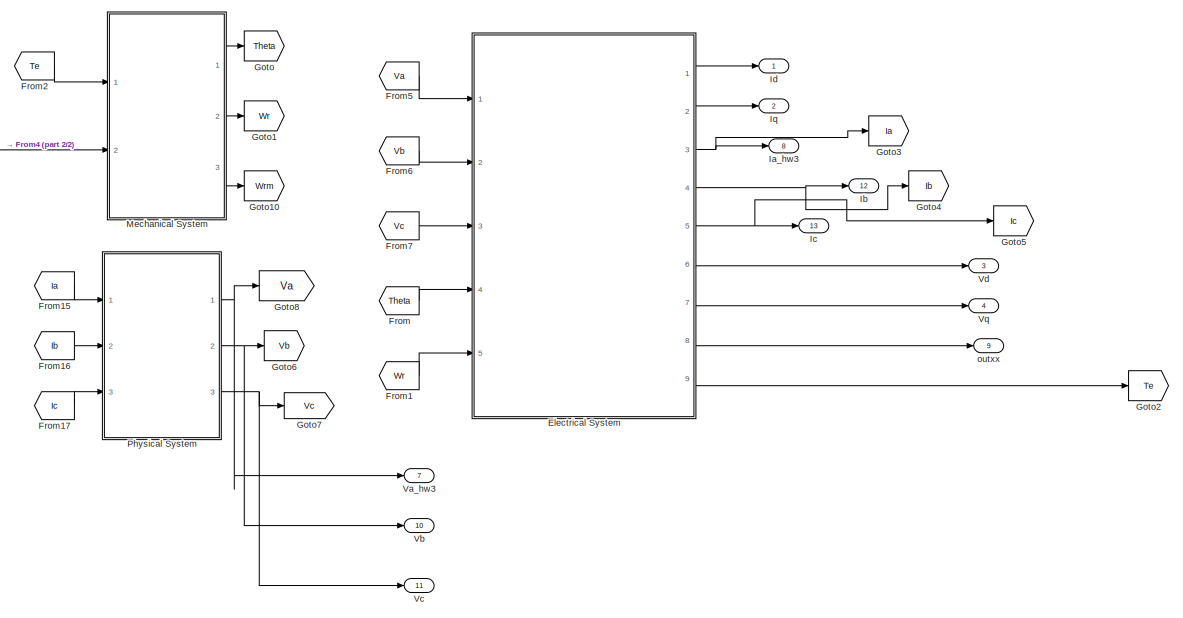
[diagram: root canvas - part 1/2, most of the canvas]
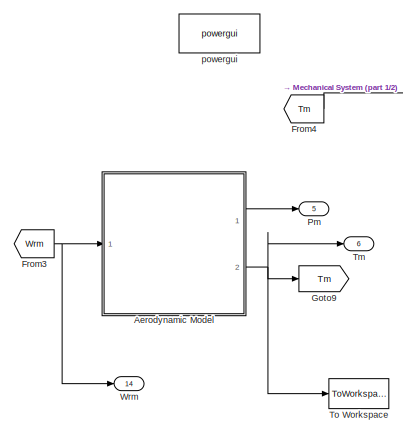
[diagram: root canvas - part 2/2, middle left region]
MODEL slx_8ada5b428c12
KIND model
CONFIG AbsTol = auto
CONFIG EnableMultiTasking = off
CONFIG FixedStep = auto
CONFIG MaxStep = auto
CONFIG MinStep = auto
CONFIG RelTol = 1e-3
CONFIG SampleTimeConstraint = Unconstrained
CONFIG Solver = ode45
CONFIG SolverName = ode45
CONFIG StartTime = 0.0
CONFIG StopTime = 4
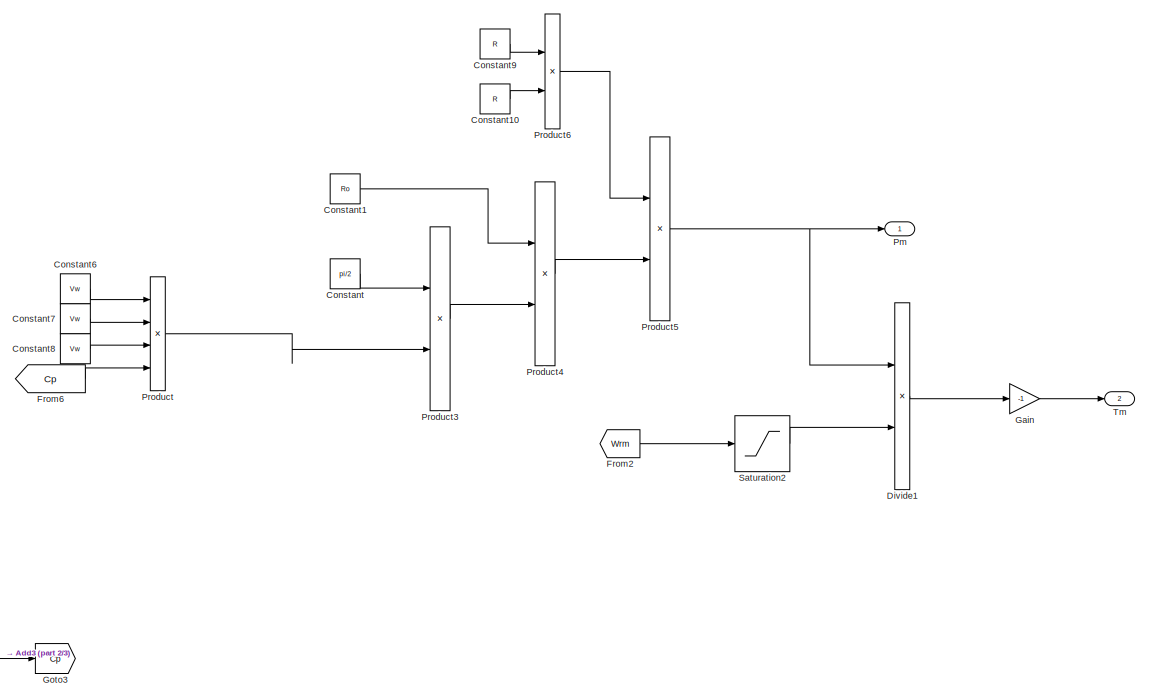
[diagram: Aerodynamic Model  - part 1/3, right side, full height]
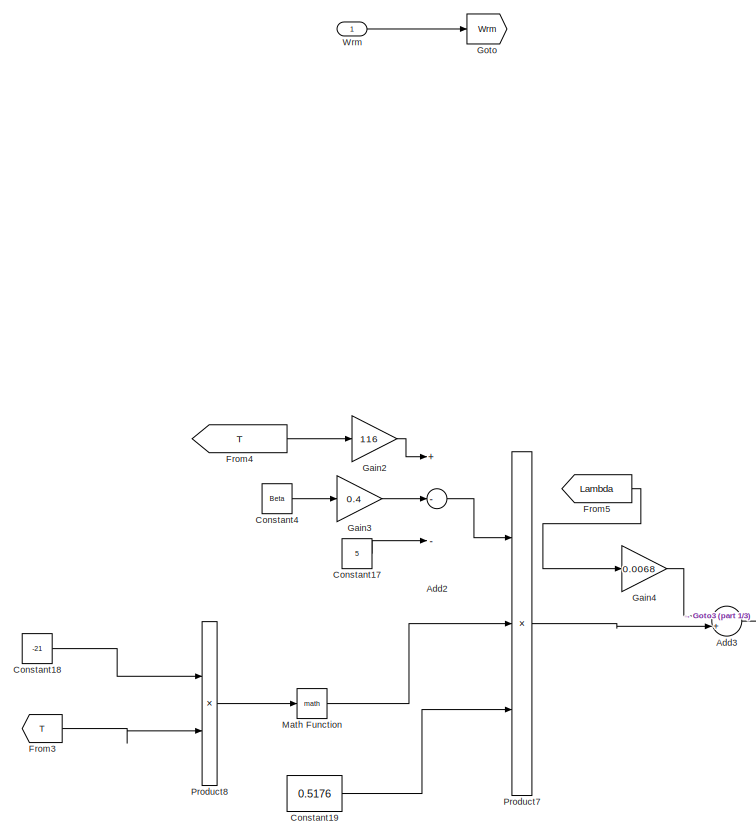
[diagram: Aerodynamic Model  - part 2/3, center side, full height]
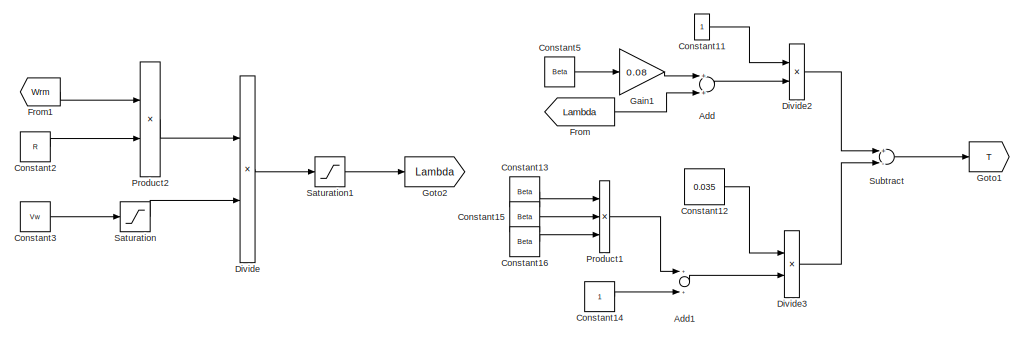
[diagram: Aerodynamic Model  - part 3/3, bottom left region]
BLOCK [SubSystem] Aerodynamic Model 
  Ports = [1, 2]
  RequestExecContextInheritance = off
BLOCK [Sum] Aerodynamic Model /Add
  InputSameDT = off
  OutDataTypeStr = Inherit: Inherit via internal rule
  Ports = [2, 1]
  SaturateOnIntegerOverflow = off
BLOCK [Sum] Aerodynamic Model /Add1
  InputSameDT = off
  OutDataTypeStr = Inherit: Inherit via internal rule
  Ports = [2, 1]
  SaturateOnIntegerOverflow = off
BLOCK [Sum] Aerodynamic Model /Add2
  InputSameDT = off
  Inputs = +--
  OutDataTypeStr = Inherit: Inherit via internal rule
  Ports = [3, 1]
  SaturateOnIntegerOverflow = off
BLOCK [Sum] Aerodynamic Model /Add3
  InputSameDT = off
  OutDataTypeStr = Inherit: Inherit via internal rule
  Ports = [2, 1]
  SaturateOnIntegerOverflow = off
BLOCK [Constant] Aerodynamic Model /Constant
  Value = pi/2
BLOCK [Constant] Aerodynamic Model /Constant1
  Value = Ro
BLOCK [Constant] Aerodynamic Model /Constant10
  Value = R
BLOCK [Constant] Aerodynamic Model /Constant11
BLOCK [Constant] Aerodynamic Model /Constant12
  Value = 0.035
BLOCK [Constant] Aerodynamic Model /Constant13
  Value = Beta
BLOCK [Constant] Aerodynamic Model /Constant14
BLOCK [Constant] Aerodynamic Model /Constant15
  Value = Beta
BLOCK [Constant] Aerodynamic Model /Constant16
  Value = Beta
BLOCK [Constant] Aerodynamic Model /Constant17
  Value = 5
BLOCK [Constant] Aerodynamic Model /Constant18
  Value = -21
BLOCK [Constant] Aerodynamic Model /Constant19
  Value = 0.5176
BLOCK [Constant] Aerodynamic Model /Constant2
  Value = R
BLOCK [Constant] Aerodynamic Model /Constant3
  Value = Vw
BLOCK [Constant] Aerodynamic Model /Constant4
  Value = Beta
BLOCK [Constant] Aerodynamic Model /Constant5
  Value = Beta
BLOCK [Constant] Aerodynamic Model /Constant6
  Value = Vw
BLOCK [Constant] Aerodynamic Model /Constant7
  Value = Vw
BLOCK [Constant] Aerodynamic Model /Constant8
  Value = Vw
BLOCK [Constant] Aerodynamic Model /Constant9
  Value = R
BLOCK [Product] Aerodynamic Model /Divide
  InputSameDT = off
  Inputs = */
  OutDataTypeStr = Inherit: Inherit via internal rule
  Ports = [2, 1]
  RndMeth = Floor
  SaturateOnIntegerOverflow = off
BLOCK [Product] Aerodynamic Model /Divide1
  InputSameDT = off
  Inputs = */
  OutDataTypeStr = Inherit: Inherit via internal rule
  Ports = [2, 1]
  RndMeth = Floor
  SaturateOnIntegerOverflow = off
BLOCK [Product] Aerodynamic Model /Divide2
  InputSameDT = off
  Inputs = */
  OutDataTypeStr = Inherit: Inherit via internal rule
  Ports = [2, 1]
  RndMeth = Floor
  SaturateOnIntegerOverflow = off
BLOCK [Product] Aerodynamic Model /Divide3
  InputSameDT = off
  Inputs = */
  OutDataTypeStr = Inherit: Inherit via internal rule
  Ports = [2, 1]
  RndMeth = Floor
  SaturateOnIntegerOverflow = off
BLOCK [From] Aerodynamic Model /From
  GotoTag = Lambda
BLOCK [From] Aerodynamic Model /From1
  GotoTag = Wrm
BLOCK [From] Aerodynamic Model /From2
  GotoTag = Wrm
BLOCK [From] Aerodynamic Model /From3
  GotoTag = T
BLOCK [From] Aerodynamic Model /From4
  GotoTag = T
BLOCK [From] Aerodynamic Model /From5
  GotoTag = Lambda
BLOCK [From] Aerodynamic Model /From6
  GotoTag = Cp
BLOCK [Gain] Aerodynamic Model /Gain
  Gain = -1
  OutDataTypeStr = Inherit: Inherit via internal rule
  ParamDataTypeStr = Inherit: Inherit via internal rule
  SaturateOnIntegerOverflow = off
BLOCK [Gain] Aerodynamic Model /Gain1
  Gain = 0.08
  OutDataTypeStr = Inherit: Inherit via internal rule
  ParamDataTypeStr = Inherit: Inherit via internal rule
  SaturateOnIntegerOverflow = off
BLOCK [Gain] Aerodynamic Model /Gain2
  Gain = 116
  OutDataTypeStr = Inherit: Inherit via internal rule
  ParamDataTypeStr = Inherit: Inherit via internal rule
  SaturateOnIntegerOverflow = off
BLOCK [Gain] Aerodynamic Model /Gain3
  Gain = 0.4
  OutDataTypeStr = Inherit: Inherit via internal rule
  ParamDataTypeStr = Inherit: Inherit via internal rule
  SaturateOnIntegerOverflow = off
BLOCK [Gain] Aerodynamic Model /Gain4
  Gain = 0.0068
  OutDataTypeStr = Inherit: Inherit via internal rule
  ParamDataTypeStr = Inherit: Inherit via internal rule
  SaturateOnIntegerOverflow = off
BLOCK [Goto] Aerodynamic Model /Goto
  GotoTag = Wrm
BLOCK [Goto] Aerodynamic Model /Goto1
  GotoTag = T
BLOCK [Goto] Aerodynamic Model /Goto2
  GotoTag = Lambda
BLOCK [Goto] Aerodynamic Model /Goto3
  GotoTag = Cp
BLOCK [Math] Aerodynamic Model /Math Function
  Ports = [1, 1]
BLOCK [Outport] Aerodynamic Model /Pm
  IconDisplay = Port number
BLOCK [Product] Aerodynamic Model /Product
  InputSameDT = off
  Inputs = 4
  OutDataTypeStr = Inherit: Inherit via internal rule
  Ports = [4, 1]
  RndMeth = Floor
  SaturateOnIntegerOverflow = off
BLOCK [Product] Aerodynamic Model /Product1
  InputSameDT = off
  Inputs = 3
  OutDataTypeStr = Inherit: Inherit via internal rule
  Ports = [3, 1]
  RndMeth = Floor
  SaturateOnIntegerOverflow = off
BLOCK [Product] Aerodynamic Model /Product2
  InputSameDT = off
  OutDataTypeStr = Inherit: Inherit via internal rule
  Ports = [2, 1]
  RndMeth = Floor
  SaturateOnIntegerOverflow = off
BLOCK [Product] Aerodynamic Model /Product3
  InputSameDT = off
  OutDataTypeStr = Inherit: Inherit via internal rule
  Ports = [2, 1]
  RndMeth = Floor
  SaturateOnIntegerOverflow = off
BLOCK [Product] Aerodynamic Model /Product4
  InputSameDT = off
  OutDataTypeStr = Inherit: Inherit via internal rule
  Ports = [2, 1]
  RndMeth = Floor
  SaturateOnIntegerOverflow = off
BLOCK [Product] Aerodynamic Model /Product5
  InputSameDT = off
  OutDataTypeStr = Inherit: Inherit via internal rule
  Ports = [2, 1]
  RndMeth = Floor
  SaturateOnIntegerOverflow = off
BLOCK [Product] Aerodynamic Model /Product6
  InputSameDT = off
  OutDataTypeStr = Inherit: Inherit via internal rule
  Ports = [2, 1]
  RndMeth = Floor
  SaturateOnIntegerOverflow = off
BLOCK [Product] Aerodynamic Model /Product7
  InputSameDT = off
  Inputs = 3
  OutDataTypeStr = Inherit: Inherit via internal rule
  Ports = [3, 1]
  RndMeth = Floor
  SaturateOnIntegerOverflow = off
BLOCK [Product] Aerodynamic Model /Product8
  InputSameDT = off
  OutDataTypeStr = Inherit: Inherit via internal rule
  Ports = [2, 1]
  RndMeth = Floor
  SaturateOnIntegerOverflow = off
BLOCK [Saturate] Aerodynamic Model /Saturation
  InputPortMap = u0
  LowerLimit = 1e-6
  Ports = [1, 1]
  UpperLimit = 1e6
BLOCK [Saturate] Aerodynamic Model /Saturation1
  InputPortMap = u0
  LowerLimit = 1e-6
  Ports = [1, 1]
  UpperLimit = 1e6
BLOCK [Saturate] Aerodynamic Model /Saturation2
  InputPortMap = u0
  LowerLimit = 1e-6
  Ports = [1, 1]
  UpperLimit = 1e6
BLOCK [Sum] Aerodynamic Model /Subtract
  InputSameDT = off
  Inputs = +-
  OutDataTypeStr = Inherit: Inherit via internal rule
  Ports = [2, 1]
  SaturateOnIntegerOverflow = off
BLOCK [Outport] Aerodynamic Model /Tm
  IconDisplay = Port number
  Port = 2
BLOCK [Inport] Aerodynamic Model /Wrm 
  IconDisplay = Port number
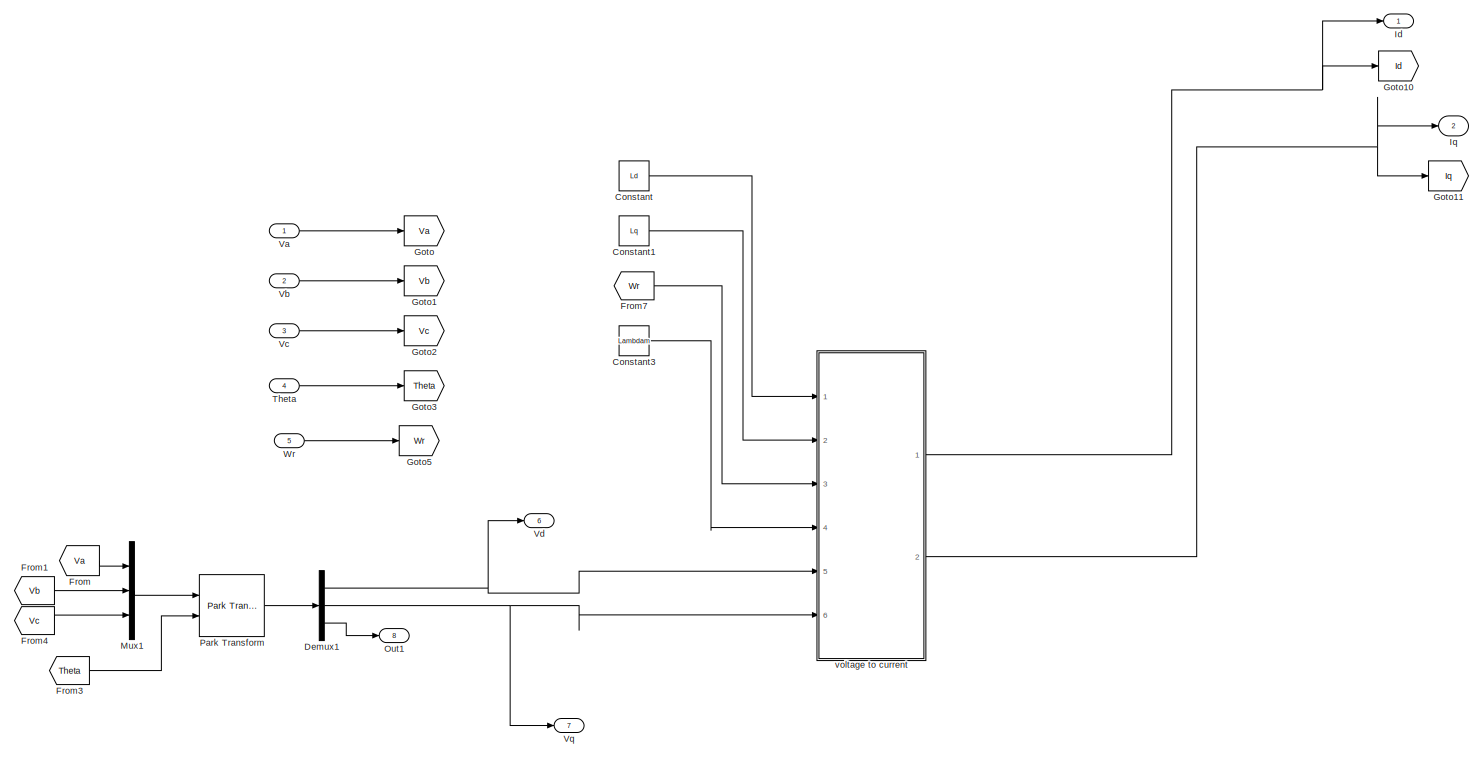
[diagram: Electrical System  - part 1/3, middle left region]
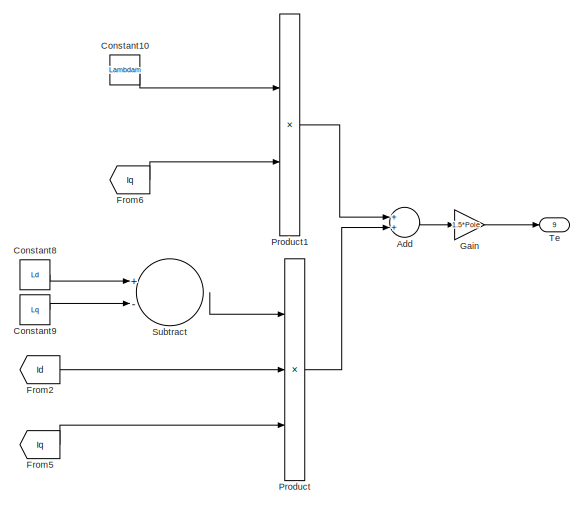
[diagram: Electrical System  - part 2/3, middle right region]
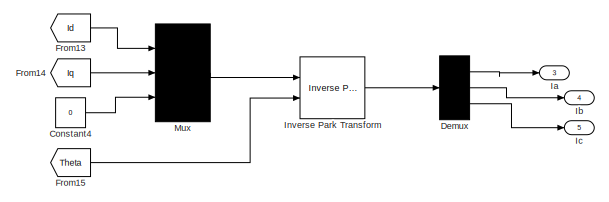
[diagram: Electrical System  - part 3/3, bottom center region]
BLOCK [SubSystem] Electrical System 
  Ports = [5, 9]
  RequestExecContextInheritance = off
  ShowPortLabels = SignalName
BLOCK [Sum] Electrical System /Add
  InputSameDT = off
  OutDataTypeStr = Inherit: Inherit via internal rule
  Ports = [2, 1]
  SaturateOnIntegerOverflow = off
BLOCK [Constant] Electrical System /Constant
  Value = Ld
BLOCK [Constant] Electrical System /Constant1
  Value = Lq
BLOCK [Constant] Electrical System /Constant10
  Value = Lambdam
BLOCK [Constant] Electrical System /Constant3
  Value = Lambdam
BLOCK [Constant] Electrical System /Constant4
  Value = 0
BLOCK [Constant] Electrical System /Constant8
  Value = Ld
BLOCK [Constant] Electrical System /Constant9
  Value = Lq
BLOCK [Demux] Electrical System /Demux
  DisplayOption = bar
  Outputs = 3
  Ports = [1, 3]
BLOCK [Demux] Electrical System /Demux1
  DisplayOption = bar
  Outputs = 3
  Ports = [1, 3]
BLOCK [From] Electrical System /From
  GotoTag = Va
BLOCK [From] Electrical System /From1
  GotoTag = Vb
BLOCK [From] Electrical System /From13
  GotoTag = Id
BLOCK [From] Electrical System /From14
  GotoTag = Iq
BLOCK [From] Electrical System /From15
  GotoTag = Theta
BLOCK [From] Electrical System /From2
  GotoTag = Id
BLOCK [From] Electrical System /From3
  GotoTag = Theta
BLOCK [From] Electrical System /From4
  GotoTag = Vc
BLOCK [From] Electrical System /From5
  GotoTag = Iq
BLOCK [From] Electrical System /From6
  GotoTag = Iq
BLOCK [From] Electrical System /From7
  GotoTag = Wr
BLOCK [Gain] Electrical System /Gain
  Gain = 1.5*Pole
  OutDataTypeStr = Inherit: Inherit via internal rule
  ParamDataTypeStr = Inherit: Inherit via internal rule
  SaturateOnIntegerOverflow = off
BLOCK [Goto] Electrical System /Goto
  GotoTag = Va
BLOCK [Goto] Electrical System /Goto1
  GotoTag = Vb
BLOCK [Goto] Electrical System /Goto10
  GotoTag = Id
BLOCK [Goto] Electrical System /Goto11
  GotoTag = Iq
BLOCK [Goto] Electrical System /Goto2
  GotoTag = Vc
BLOCK [Goto] Electrical System /Goto3
  GotoTag = Theta
BLOCK [Goto] Electrical System /Goto5
  GotoTag = Wr
BLOCK [Outport] Electrical System /Ia
  IconDisplay = Port number
  Port = 3
BLOCK [Outport] Electrical System /Ib
  IconDisplay = Port number
  Port = 4
BLOCK [Outport] Electrical System /Ic
  IconDisplay = Port number
  Port = 5
BLOCK [Outport] Electrical System /Id
  IconDisplay = Port number
BLOCK [Reference] Electrical System /Inverse Park Transform  REF=peTransforms/Inverse
Park Transform
  Ports = [2, 1]
  SourceBlock = peTransforms/Inverse\nPark Transform
  SourceType = Inverse Park Transform
BLOCK [Outport] Electrical System /Iq
  IconDisplay = Port number
  Port = 2
BLOCK [Mux] Electrical System /Mux
  DisplayOption = bar
  Inputs = 3
  Ports = [3, 1]
BLOCK [Mux] Electrical System /Mux1
  DisplayOption = bar
  Inputs = 3
  Ports = [3, 1]
BLOCK [Outport] Electrical System /Out1
  IconDisplay = Port number
  Port = 8
BLOCK [Reference] Electrical System /Park Transform  REF=peTransforms/Park Transform
  Ports = [2, 1]
  SourceBlock = peTransforms/Park Transform
  SourceType = Park Transform
BLOCK [Product] Electrical System /Product
  InputSameDT = off
  Inputs = 3
  OutDataTypeStr = Inherit: Inherit via internal rule
  Ports = [3, 1]
  RndMeth = Floor
  SaturateOnIntegerOverflow = off
BLOCK [Product] Electrical System /Product1
  InputSameDT = off
  OutDataTypeStr = Inherit: Inherit via internal rule
  Ports = [2, 1]
  RndMeth = Floor
  SaturateOnIntegerOverflow = off
BLOCK [Sum] Electrical System /Subtract
  InputSameDT = off
  Inputs = +-
  OutDataTypeStr = Inherit: Inherit via internal rule
  Ports = [2, 1]
  SaturateOnIntegerOverflow = off
BLOCK [Outport] Electrical System /Te 
  IconDisplay = Port number
  Port = 9
BLOCK [Inport] Electrical System /Theta
  IconDisplay = Port number
  Port = 4
BLOCK [Inport] Electrical System /Va
  IconDisplay = Port number
BLOCK [Inport] Electrical System /Vb
  IconDisplay = Port number
  Port = 2
BLOCK [Inport] Electrical System /Vc
  IconDisplay = Port number
  Port = 3
BLOCK [Outport] Electrical System /Vd 
  IconDisplay = Port number
  Port = 6
BLOCK [Outport] Electrical System /Vq 
  IconDisplay = Port number
  Port = 7
BLOCK [Inport] Electrical System /Wr
  IconDisplay = Port number
  Port = 5
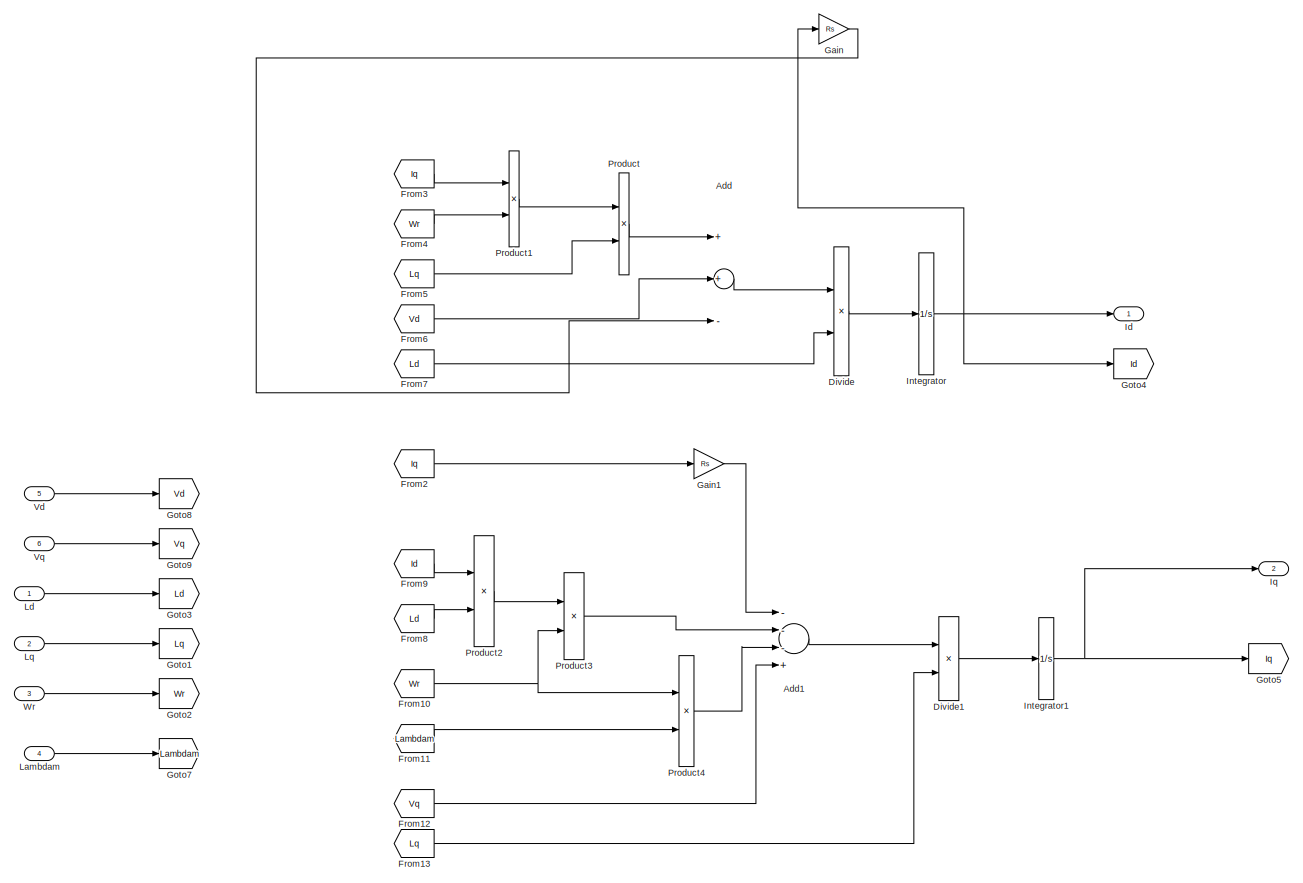
[diagram: Electrical System /voltage to current - part 1/1, most of the canvas]
BLOCK [SubSystem] Electrical System /voltage to current
  Ports = [6, 2]
  RequestExecContextInheritance = off
  ShowPortLabels = SignalName
BLOCK [Sum] Electrical System /voltage to current/Add
  InputSameDT = off
  Inputs = ++-
  OutDataTypeStr = Inherit: Inherit via internal rule
  Ports = [3, 1]
  SaturateOnIntegerOverflow = off
BLOCK [Sum] Electrical System /voltage to current/Add1
  InputSameDT = off
  Inputs = ---+
  OutDataTypeStr = Inherit: Inherit via internal rule
  Ports = [4, 1]
  SaturateOnIntegerOverflow = off
BLOCK [Product] Electrical System /voltage to current/Divide
  InputSameDT = off
  Inputs = */
  OutDataTypeStr = Inherit: Inherit via internal rule
  Ports = [2, 1]
  RndMeth = Floor
  SaturateOnIntegerOverflow = off
BLOCK [Product] Electrical System /voltage to current/Divide1
  InputSameDT = off
  Inputs = */
  OutDataTypeStr = Inherit: Inherit via internal rule
  Ports = [2, 1]
  RndMeth = Floor
  SaturateOnIntegerOverflow = off
BLOCK [From] Electrical System /voltage to current/From10
  GotoTag = Wr
BLOCK [From] Electrical System /voltage to current/From11
  GotoTag = Lambdam
BLOCK [From] Electrical System /voltage to current/From12
  GotoTag = Vq
BLOCK [From] Electrical System /voltage to current/From13
  GotoTag = Lq
BLOCK [From] Electrical System /voltage to current/From2
  GotoTag = Iq
BLOCK [From] Electrical System /voltage to current/From3
  GotoTag = Iq
BLOCK [From] Electrical System /voltage to current/From4
  GotoTag = Wr
BLOCK [From] Electrical System /voltage to current/From5
  GotoTag = Lq
BLOCK [From] Electrical System /voltage to current/From6
  GotoTag = Vd
BLOCK [From] Electrical System /voltage to current/From7
  GotoTag = Ld
BLOCK [From] Electrical System /voltage to current/From8
  GotoTag = Ld
BLOCK [From] Electrical System /voltage to current/From9
  GotoTag = Id
BLOCK [Gain] Electrical System /voltage to current/Gain
  Gain = Rs
  OutDataTypeStr = Inherit: Inherit via internal rule
  ParamDataTypeStr = Inherit: Inherit via internal rule
  SaturateOnIntegerOverflow = off
BLOCK [Gain] Electrical System /voltage to current/Gain1
  Gain = Rs
  OutDataTypeStr = Inherit: Inherit via internal rule
  ParamDataTypeStr = Inherit: Inherit via internal rule
  SaturateOnIntegerOverflow = off
BLOCK [Goto] Electrical System /voltage to current/Goto1
  GotoTag = Lq
BLOCK [Goto] Electrical System /voltage to current/Goto2
  GotoTag = Wr
BLOCK [Goto] Electrical System /voltage to current/Goto3
  GotoTag = Ld
BLOCK [Goto] Electrical System /voltage to current/Goto4
  GotoTag = Id
BLOCK [Goto] Electrical System /voltage to current/Goto5
  GotoTag = Iq
BLOCK [Goto] Electrical System /voltage to current/Goto7
  GotoTag = Lambdam
BLOCK [Goto] Electrical System /voltage to current/Goto8
  GotoTag = Vd
BLOCK [Goto] Electrical System /voltage to current/Goto9
  GotoTag = Vq
  IconDisplay = Tag and signal name
BLOCK [Outport] Electrical System /voltage to current/Id
  IconDisplay = Port number
BLOCK [Integrator] Electrical System /voltage to current/Integrator
  Ports = [1, 1]
BLOCK [Integrator] Electrical System /voltage to current/Integrator1
  Ports = [1, 1]
BLOCK [Outport] Electrical System /voltage to current/Iq
  IconDisplay = Port number
  Port = 2
BLOCK [Inport] Electrical System /voltage to current/Lambdam
  IconDisplay = Port number
  Port = 4
BLOCK [Inport] Electrical System /voltage to current/Ld
  IconDisplay = Port number
BLOCK [Inport] Electrical System /voltage to current/Lq 
  IconDisplay = Port number
  Port = 2
BLOCK [Product] Electrical System /voltage to current/Product
  InputSameDT = off
  OutDataTypeStr = Inherit: Inherit via internal rule
  Ports = [2, 1]
  RndMeth = Floor
  SaturateOnIntegerOverflow = off
BLOCK [Product] Electrical System /voltage to current/Product1
  InputSameDT = off
  OutDataTypeStr = Inherit: Inherit via internal rule
  Ports = [2, 1]
  RndMeth = Floor
  SaturateOnIntegerOverflow = off
BLOCK [Product] Electrical System /voltage to current/Product2
  InputSameDT = off
  OutDataTypeStr = Inherit: Inherit via internal rule
  Ports = [2, 1]
  RndMeth = Floor
  SaturateOnIntegerOverflow = off
BLOCK [Product] Electrical System /voltage to current/Product3
  InputSameDT = off
  OutDataTypeStr = Inherit: Inherit via internal rule
  Ports = [2, 1]
  RndMeth = Floor
  SaturateOnIntegerOverflow = off
BLOCK [Product] Electrical System /voltage to current/Product4
  InputSameDT = off
  OutDataTypeStr = Inherit: Inherit via internal rule
  Ports = [2, 1]
  RndMeth = Floor
  SaturateOnIntegerOverflow = off
BLOCK [Inport] Electrical System /voltage to current/Vd 
  IconDisplay = Port number
  Port = 5
BLOCK [Inport] Electrical System /voltage to current/Vq
  IconDisplay = Port number
  Port = 6
BLOCK [Inport] Electrical System /voltage to current/Wr
  IconDisplay = Port number
  Port = 3
BLOCK [From] From
  GotoTag = Theta
BLOCK [From] From1
  GotoTag = Wr
BLOCK [From] From15
  GotoTag = Ia
BLOCK [From] From16
  GotoTag = Ib
BLOCK [From] From17
  GotoTag = Ic
BLOCK [From] From2
  GotoTag = Te
BLOCK [From] From3
  GotoTag = Wrm
BLOCK [From] From4
  GotoTag = Tm
BLOCK [From] From5
  GotoTag = Va
BLOCK [From] From6
  GotoTag = Vb
BLOCK [From] From7
  GotoTag = Vc
BLOCK [Goto] Goto
  GotoTag = Theta
BLOCK [Goto] Goto1
  GotoTag = Wr
BLOCK [Goto] Goto10
  GotoTag = Wrm
BLOCK [Goto] Goto2
  GotoTag = Te
BLOCK [Goto] Goto3
  GotoTag = Ia
BLOCK [Goto] Goto4
  GotoTag = Ib
BLOCK [Goto] Goto5
  GotoTag = Ic
BLOCK [Goto] Goto6
  GotoTag = Vb
BLOCK [Goto] Goto7
  GotoTag = Vc
BLOCK [Goto] Goto8
  GotoTag = Va
BLOCK [Goto] Goto9
  GotoTag = Tm
BLOCK [Outport] Ia_hw3 
  IconDisplay = Port number
  Port = 8
BLOCK [Outport] Ib
  IconDisplay = Port number
  Port = 12
BLOCK [Outport] Ic 
  IconDisplay = Port number
  Port = 13
BLOCK [Outport] Id
  IconDisplay = Port number
BLOCK [Outport] Iq
  IconDisplay = Port number
  Port = 2
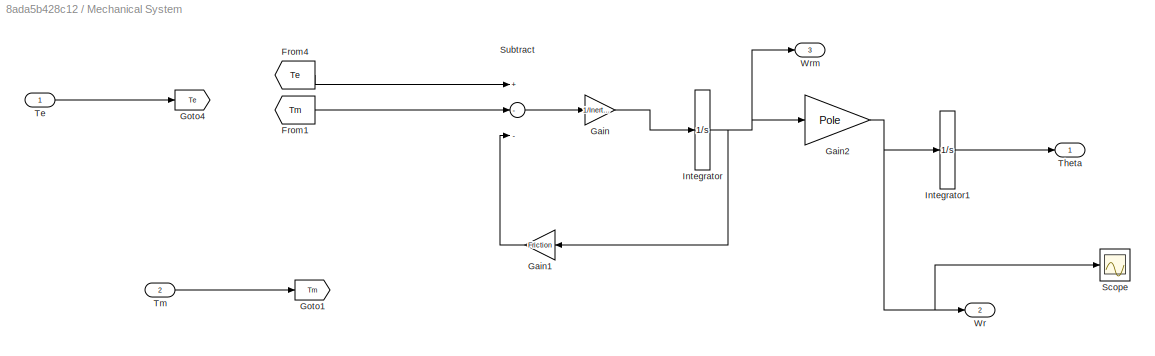
BLOCK [SubSystem] Mechanical System 
  Ports = [2, 3]
  RequestExecContextInheritance = off
BLOCK [From] Mechanical System /From1
  GotoTag = Tm
BLOCK [From] Mechanical System /From4
  GotoTag = Te
BLOCK [Gain] Mechanical System /Gain
  Gain = 1/Inertia
  OutDataTypeStr = Inherit: Inherit via internal rule
  ParamDataTypeStr = Inherit: Inherit via internal rule
  SaturateOnIntegerOverflow = off
BLOCK [Gain] Mechanical System /Gain1
  Gain = Friction
  OutDataTypeStr = Inherit: Inherit via internal rule
  ParamDataTypeStr = Inherit: Inherit via internal rule
  SaturateOnIntegerOverflow = off
BLOCK [Gain] Mechanical System /Gain2
  Gain = Pole
  OutDataTypeStr = Inherit: Inherit via internal rule
  ParamDataTypeStr = Inherit: Inherit via internal rule
  SaturateOnIntegerOverflow = off
BLOCK [Goto] Mechanical System /Goto1
  GotoTag = Tm
BLOCK [Goto] Mechanical System /Goto4
  GotoTag = Te
BLOCK [Integrator] Mechanical System /Integrator
  Ports = [1, 1]
BLOCK [Integrator] Mechanical System /Integrator1
  Ports = [1, 1]
BLOCK [Scope] Mechanical System /Scope
  Floating = off
  NumInputPorts = 1
  Ports = [1]
  ScopeSpecificationString = Simulink.scopes.TimeScopeBlockCfg('CurrentConfiguration', extmgr.ConfigurationSet(extmgr.Configuration('Core','General UI',true),extmgr.Configuration('Core','Source UI',true),extmgr.Configuration('Sources','WiredSimulink',true,'DataLoggingVariableName','ScopeData1'),extmgr.Configuration('Visuals','Time Domain',true,'SerializedDisplays',{struct('MinYLimReal','-46.12266','MaxYLimReal','415.10398','Y...<+1374ch>
BLOCK [Sum] Mechanical System /Subtract
  InputSameDT = off
  Inputs = +--
  OutDataTypeStr = Inherit: Inherit via internal rule
  Ports = [3, 1]
  SaturateOnIntegerOverflow = off
BLOCK [Inport] Mechanical System /Te
  IconDisplay = Port number
BLOCK [Outport] Mechanical System /Theta
  IconDisplay = Port number
BLOCK [Inport] Mechanical System /Tm 
  IconDisplay = Port number
  Port = 2
BLOCK [Outport] Mechanical System /Wr
  IconDisplay = Port number
  Port = 2
BLOCK [Outport] Mechanical System /Wrm 
  IconDisplay = Port number
  Port = 3
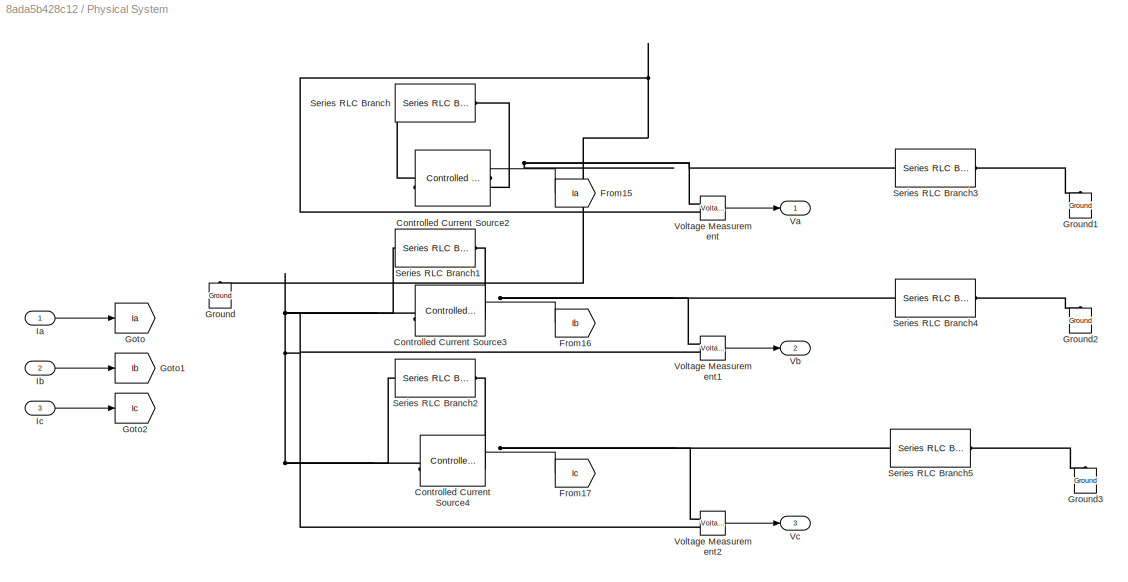
BLOCK [SubSystem] Physical System 
  Ports = [3, 3]
  RequestExecContextInheritance = off
BLOCK [Reference] Physical System /Controlled Current Source2  REF=powerlib/Electrical
Sources/Controlled Current Source
  Ports = [1, 0, 0, 0, 0, 1, 1]
  SourceBlock = powerlib/Electrical\nSources/Controlled Current Source
  SourceProductBaseCode = PS
  SourceProductName = Simscape Power Systems
  SourceType = Controlled Current Source
BLOCK [Reference] Physical System /Controlled Current Source3  REF=powerlib/Electrical
Sources/Controlled Current Source
  Ports = [1, 0, 0, 0, 0, 1, 1]
  SourceBlock = powerlib/Electrical\nSources/Controlled Current Source
  SourceProductBaseCode = PS
  SourceProductName = Simscape Power Systems
  SourceType = Controlled Current Source
BLOCK [Reference] Physical System /Controlled Current Source4  REF=powerlib/Electrical
Sources/Controlled Current Source
  Ports = [1, 0, 0, 0, 0, 1, 1]
  SourceBlock = powerlib/Electrical\nSources/Controlled Current Source
  SourceProductBaseCode = PS
  SourceProductName = Simscape Power Systems
  SourceType = Controlled Current Source
BLOCK [From] Physical System /From15
  GotoTag = Ia
BLOCK [From] Physical System /From16
  GotoTag = Ib
BLOCK [From] Physical System /From17
  GotoTag = Ic
BLOCK [Goto] Physical System /Goto
  GotoTag = Ia
BLOCK [Goto] Physical System /Goto1
  GotoTag = Ib
BLOCK [Goto] Physical System /Goto2
  GotoTag = Ic
BLOCK [Reference] Physical System /Ground  REF=powerlib/Elements/Ground
  Ports = [0, 0, 0, 0, 0, 1]
  SourceBlock = powerlib/Elements/Ground
  SourceProductBaseCode = PS
  SourceProductName = Simscape Power Systems
  SourceType = Ground
BLOCK [Reference] Physical System /Ground1  REF=powerlib/Elements/Ground
  Ports = [0, 0, 0, 0, 0, 1]
  SourceBlock = powerlib/Elements/Ground
  SourceProductBaseCode = PS
  SourceProductName = Simscape Power Systems
  SourceType = Ground
BLOCK [Reference] Physical System /Ground2  REF=powerlib/Elements/Ground
  Ports = [0, 0, 0, 0, 0, 1]
  SourceBlock = powerlib/Elements/Ground
  SourceProductBaseCode = PS
  SourceProductName = Simscape Power Systems
  SourceType = Ground
BLOCK [Reference] Physical System /Ground3  REF=powerlib/Elements/Ground
  Ports = [0, 0, 0, 0, 0, 1]
  SourceBlock = powerlib/Elements/Ground
  SourceProductBaseCode = PS
  SourceProductName = Simscape Power Systems
  SourceType = Ground
BLOCK [Inport] Physical System /Ia 
  IconDisplay = Port number
BLOCK [Inport] Physical System /Ib 
  IconDisplay = Port number
  Port = 2
BLOCK [Inport] Physical System /Ic 
  IconDisplay = Port number
  Port = 3
BLOCK [Reference] Physical System /Series RLC Branch  REF=powerlib/Elements/Series RLC Branch
  Ports = [0, 0, 0, 0, 0, 1, 1]
  SourceBlock = powerlib/Elements/Series RLC Branch
  SourceProductBaseCode = PS
  SourceProductName = Simscape Power Systems
  SourceType = Series RLC Branch
BLOCK [Reference] Physical System /Series RLC Branch1  REF=powerlib/Elements/Series RLC Branch
  Ports = [0, 0, 0, 0, 0, 1, 1]
  SourceBlock = powerlib/Elements/Series RLC Branch
  SourceProductBaseCode = PS
  SourceProductName = Simscape Power Systems
  SourceType = Series RLC Branch
BLOCK [Reference] Physical System /Series RLC Branch2  REF=powerlib/Elements/Series RLC Branch
  Ports = [0, 0, 0, 0, 0, 1, 1]
  SourceBlock = powerlib/Elements/Series RLC Branch
  SourceProductBaseCode = PS
  SourceProductName = Simscape Power Systems
  SourceType = Series RLC Branch
BLOCK [Reference] Physical System /Series RLC Branch3  REF=powerlib/Elements/Series RLC Branch
  Ports = [0, 0, 0, 0, 0, 1, 1]
  SourceBlock = powerlib/Elements/Series RLC Branch
  SourceProductBaseCode = PS
  SourceProductName = Simscape Power Systems
  SourceType = Series RLC Branch
BLOCK [Reference] Physical System /Series RLC Branch4  REF=powerlib/Elements/Series RLC Branch
  Ports = [0, 0, 0, 0, 0, 1, 1]
  SourceBlock = powerlib/Elements/Series RLC Branch
  SourceProductBaseCode = PS
  SourceProductName = Simscape Power Systems
  SourceType = Series RLC Branch
BLOCK [Reference] Physical System /Series RLC Branch5  REF=powerlib/Elements/Series RLC Branch
  Ports = [0, 0, 0, 0, 0, 1, 1]
  SourceBlock = powerlib/Elements/Series RLC Branch
  SourceProductBaseCode = PS
  SourceProductName = Simscape Power Systems
  SourceType = Series RLC Branch
BLOCK [Outport] Physical System /Va 
  IconDisplay = Port number
BLOCK [Outport] Physical System /Vb 
  IconDisplay = Port number
  Port = 2
BLOCK [Outport] Physical System /Vc 
  IconDisplay = Port number
  Port = 3
BLOCK [Reference] Physical System /Voltage Measurement  REF=powerlib/Measurements/Voltage Measurement
  Ports = [0, 1, 0, 0, 0, 2]
  SourceBlock = powerlib/Measurements/Voltage Measurement
  SourceProductBaseCode = PS
  SourceProductName = Simscape Power Systems
  SourceType = Voltage Measurement
  UserDataPersistent = on
BLOCK [Reference] Physical System /Voltage Measurement1  REF=powerlib/Measurements/Voltage Measurement
  Ports = [0, 1, 0, 0, 0, 2]
  SourceBlock = powerlib/Measurements/Voltage Measurement
  SourceProductBaseCode = PS
  SourceProductName = Simscape Power Systems
  SourceType = Voltage Measurement
  UserDataPersistent = on
BLOCK [Reference] Physical System /Voltage Measurement2  REF=powerlib/Measurements/Voltage Measurement
  Ports = [0, 1, 0, 0, 0, 2]
  SourceBlock = powerlib/Measurements/Voltage Measurement
  SourceProductBaseCode = PS
  SourceProductName = Simscape Power Systems
  SourceType = Voltage Measurement
  UserDataPersistent = on
BLOCK [Outport] Pm
  IconDisplay = Port number
  Port = 5
BLOCK [Outport] Tm
  IconDisplay = Port number
  Port = 6
BLOCK [ToWorkspace] To Workspace
  FixptAsFi = on
  MaxDataPoints = inf
  Ports = [1]
  SampleTime = -1
  Save2DSignal = 3-D array (concatenate along third dimension)
  SaveFormat = Timeseries
  VariableName = torque
BLOCK [Outport] Va_hw3 
  IconDisplay = Port number
  Port = 7
BLOCK [Outport] Vb 
  IconDisplay = Port number
  Port = 10
BLOCK [Outport] Vc 
  IconDisplay = Port number
  Port = 11
BLOCK [Outport] Vd 
  IconDisplay = Port number
  Port = 3
BLOCK [Outport] Vq 
  IconDisplay = Port number
  Port = 4
BLOCK [Outport] Wrm 
  IconDisplay = Port number
  Port = 14
BLOCK [Outport] outxx
  IconDisplay = Port number
  Port = 9
BLOCK [Reference] powergui  REF=powerlib/powergui
  Ports = []
  Priority = 1
  SourceBlock = powerlib/powergui
  SourceProductBaseCode = PS
  SourceProductName = Simscape Power Systems
  SourceType = PSB option menu block
LINE Aerodynamic Model /Add1:1 -> Aerodynamic Model /Divide3:2
LINE Aerodynamic Model /Add2:1 -> Aerodynamic Model /Product7:1
LINE Aerodynamic Model /Add3:1 -> Aerodynamic Model /Goto3:1
LINE Aerodynamic Model /Add:1 -> Aerodynamic Model /Divide2:2
LINE Aerodynamic Model /Constant10:1 -> Aerodynamic Model /Product6:2
LINE Aerodynamic Model /Constant11:1 -> Aerodynamic Model /Divide2:1
LINE Aerodynamic Model /Constant12:1 -> Aerodynamic Model /Divide3:1
LINE Aerodynamic Model /Constant13:1 -> Aerodynamic Model /Product1:1
LINE Aerodynamic Model /Constant14:1 -> Aerodynamic Model /Add1:2
LINE Aerodynamic Model /Constant15:1 -> Aerodynamic Model /Product1:2
LINE Aerodynamic Model /Constant16:1 -> Aerodynamic Model /Product1:3
LINE Aerodynamic Model /Constant17:1 -> Aerodynamic Model /Add2:3
LINE Aerodynamic Model /Constant18:1 -> Aerodynamic Model /Product8:1
LINE Aerodynamic Model /Constant19:1 -> Aerodynamic Model /Product7:3
LINE Aerodynamic Model /Constant1:1 -> Aerodynamic Model /Product4:1
LINE Aerodynamic Model /Constant2:1 -> Aerodynamic Model /Product2:2
LINE Aerodynamic Model /Constant3:1 -> Aerodynamic Model /Saturation:1
LINE Aerodynamic Model /Constant4:1 -> Aerodynamic Model /Gain3:1
LINE Aerodynamic Model /Constant5:1 -> Aerodynamic Model /Gain1:1
LINE Aerodynamic Model /Constant6:1 -> Aerodynamic Model /Product:1
LINE Aerodynamic Model /Constant7:1 -> Aerodynamic Model /Product:2
LINE Aerodynamic Model /Constant8:1 -> Aerodynamic Model /Product:3
LINE Aerodynamic Model /Constant9:1 -> Aerodynamic Model /Product6:1
LINE Aerodynamic Model /Constant:1 -> Aerodynamic Model /Product3:1
LINE Aerodynamic Model /Divide1:1 -> Aerodynamic Model /Gain:1
LINE Aerodynamic Model /Divide2:1 -> Aerodynamic Model /Subtract:1
LINE Aerodynamic Model /Divide3:1 -> Aerodynamic Model /Subtract:2
LINE Aerodynamic Model /Divide:1 -> Aerodynamic Model /Saturation1:1
LINE Aerodynamic Model /From1:1 -> Aerodynamic Model /Product2:1
LINE Aerodynamic Model /From2:1 -> Aerodynamic Model /Saturation2:1
LINE Aerodynamic Model /From3:1 -> Aerodynamic Model /Product8:2
LINE Aerodynamic Model /From4:1 -> Aerodynamic Model /Gain2:1
LINE Aerodynamic Model /From5:1 -> Aerodynamic Model /Gain4:1
LINE Aerodynamic Model /From6:1 -> Aerodynamic Model /Product:4
LINE Aerodynamic Model /From:1 -> Aerodynamic Model /Add:2
LINE Aerodynamic Model /Gain1:1 -> Aerodynamic Model /Add:1
LINE Aerodynamic Model /Gain2:1 -> Aerodynamic Model /Add2:1
LINE Aerodynamic Model /Gain3:1 -> Aerodynamic Model /Add2:2
LINE Aerodynamic Model /Gain4:1 -> Aerodynamic Model /Add3:1
LINE Aerodynamic Model /Gain:1 -> Aerodynamic Model /Tm:1
LINE Aerodynamic Model /Math Function:1 -> Aerodynamic Model /Product7:2
LINE Aerodynamic Model /Product1:1 -> Aerodynamic Model /Add1:1
LINE Aerodynamic Model /Product2:1 -> Aerodynamic Model /Divide:1
LINE Aerodynamic Model /Product3:1 -> Aerodynamic Model /Product4:2
LINE Aerodynamic Model /Product4:1 -> Aerodynamic Model /Product5:2
NET Aerodynamic Model /Product5:1 -> Aerodynamic Model /Divide1:1, Aerodynamic Model /Pm:1
LINE Aerodynamic Model /Product6:1 -> Aerodynamic Model /Product5:1
LINE Aerodynamic Model /Product7:1 -> Aerodynamic Model /Add3:2
LINE Aerodynamic Model /Product8:1 -> Aerodynamic Model /Math Function:1
LINE Aerodynamic Model /Product:1 -> Aerodynamic Model /Product3:2
LINE Aerodynamic Model /Saturation1:1 -> Aerodynamic Model /Goto2:1
LINE Aerodynamic Model /Saturation2:1 -> Aerodynamic Model /Divide1:2
LINE Aerodynamic Model /Saturation:1 -> Aerodynamic Model /Divide:2
LINE Aerodynamic Model /Subtract:1 -> Aerodynamic Model /Goto1:1
LINE Aerodynamic Model /Wrm :1 -> Aerodynamic Model /Goto:1
LINE Aerodynamic Model :1 -> Pm:1
NET Aerodynamic Model :2 -> Goto9:1, Tm:1, To Workspace:1
LINE Electrical System /Add:1 -> Electrical System /Gain:1
LINE Electrical System /Constant10:1 -> Electrical System /Product1:1
LINE Electrical System /Constant1:1 -> Electrical System /voltage to current:2
LINE Electrical System /Constant3:1 -> Electrical System /voltage to current:4
LINE Electrical System /Constant4:1 -> Electrical System /Mux:3
LINE Electrical System /Constant8:1 -> Electrical System /Subtract:1
LINE Electrical System /Constant9:1 -> Electrical System /Subtract:2
LINE Electrical System /Constant:1 -> Electrical System /voltage to current:1
NET Electrical System /Demux1:1 -> Electrical System /Vd :1, Electrical System /voltage to current:5
NET Electrical System /Demux1:2 -> Electrical System /Vq :1, Electrical System /voltage to current:6
LINE Electrical System /Demux1:3 -> Electrical System /Out1:1
LINE Electrical System /Demux:1 -> Electrical System /Ia:1
LINE Electrical System /Demux:2 -> Electrical System /Ib:1
LINE Electrical System /Demux:3 -> Electrical System /Ic:1
LINE Electrical System /From13:1 -> Electrical System /Mux:1
LINE Electrical System /From14:1 -> Electrical System /Mux:2
LINE Electrical System /From15:1 -> Electrical System /Inverse Park Transform:2
LINE Electrical System /From1:1 -> Electrical System /Mux1:2
LINE Electrical System /From2:1 -> Electrical System /Product:2
LINE Electrical System /From3:1 -> Electrical System /Park Transform:2
LINE Electrical System /From4:1 -> Electrical System /Mux1:3
LINE Electrical System /From5:1 -> Electrical System /Product:3
LINE Electrical System /From6:1 -> Electrical System /Product1:2
LINE Electrical System /From7:1 -> Electrical System /voltage to current:3
LINE Electrical System /From:1 -> Electrical System /Mux1:1
LINE Electrical System /Gain:1 -> Electrical System /Te :1
LINE Electrical System /Inverse Park Transform:1 -> Electrical System /Demux:1
LINE Electrical System /Mux1:1 -> Electrical System /Park Transform:1
LINE Electrical System /Mux:1 -> Electrical System /Inverse Park Transform:1
LINE Electrical System /Park Transform:1 -> Electrical System /Demux1:1
LINE Electrical System /Product1:1 -> Electrical System /Add:1
LINE Electrical System /Product:1 -> Electrical System /Add:2
LINE Electrical System /Subtract:1 -> Electrical System /Product:1
LINE Electrical System /Theta:1 -> Electrical System /Goto3:1
LINE Electrical System /Va:1 -> Electrical System /Goto:1
LINE Electrical System /Vb:1 -> Electrical System /Goto1:1
LINE Electrical System /Vc:1 -> Electrical System /Goto2:1
LINE Electrical System /Wr:1 -> Electrical System /Goto5:1
LINE Electrical System /voltage to current/Add1:1 -> Electrical System /voltage to current/Divide1:1
LINE Electrical System /voltage to current/Add:1 -> Electrical System /voltage to current/Divide:1
LINE Electrical System /voltage to current/Divide1:1 -> Electrical System /voltage to current/Integrator1:1
LINE Electrical System /voltage to current/Divide:1 -> Electrical System /voltage to current/Integrator:1
NET Electrical System /voltage to current/From10:1 -> Electrical System /voltage to current/Product3:2, Electrical System /voltage to current/Product4:1
LINE Electrical System /voltage to current/From11:1 -> Electrical System /voltage to current/Product4:2
LINE Electrical System /voltage to current/From12:1 -> Electrical System /voltage to current/Add1:4
LINE Electrical System /voltage to current/From13:1 -> Electrical System /voltage to current/Divide1:2
LINE Electrical System /voltage to current/From2:1 -> Electrical System /voltage to current/Gain1:1
LINE Electrical System /voltage to current/From3:1 -> Electrical System /voltage to current/Product1:1
LINE Electrical System /voltage to current/From4:1 -> Electrical System /voltage to current/Product1:2
LINE Electrical System /voltage to current/From5:1 -> Electrical System /voltage to current/Product:2
LINE Electrical System /voltage to current/From6:1 -> Electrical System /voltage to current/Add:2
LINE Electrical System /voltage to current/From7:1 -> Electrical System /voltage to current/Divide:2
LINE Electrical System /voltage to current/From8:1 -> Electrical System /voltage to current/Product2:2
LINE Electrical System /voltage to current/From9:1 -> Electrical System /voltage to current/Product2:1
LINE Electrical System /voltage to current/Gain1:1 -> Electrical System /voltage to current/Add1:1
LINE Electrical System /voltage to current/Gain:1 -> Electrical System /voltage to current/Add:3
NET Electrical System /voltage to current/Integrator1:1 -> Electrical System /voltage to current/Goto5:1, Electrical System /voltage to current/Iq:1
NET Electrical System /voltage to current/Integrator:1 -> Electrical System /voltage to current/Gain:1, Electrical System /voltage to current/Goto4:1, Electrical System /voltage to current/Id:1
LINE Electrical System /voltage to current/Lambdam:1 -> Electrical System /voltage to current/Goto7:1
LINE Electrical System /voltage to current/Ld:1 -> Electrical System /voltage to current/Goto3:1
LINE Electrical System /voltage to current/Lq :1 -> Electrical System /voltage to current/Goto1:1
LINE Electrical System /voltage to current/Product1:1 -> Electrical System /voltage to current/Product:1
LINE Electrical System /voltage to current/Product2:1 -> Electrical System /voltage to current/Product3:1
LINE Electrical System /voltage to current/Product3:1 -> Electrical System /voltage to current/Add1:2
LINE Electrical System /voltage to current/Product4:1 -> Electrical System /voltage to current/Add1:3
LINE Electrical System /voltage to current/Product:1 -> Electrical System /voltage to current/Add:1
LINE Electrical System /voltage to current/Vd :1 -> Electrical System /voltage to current/Goto8:1
LINE Electrical System /voltage to current/Vq:1 -> Electrical System /voltage to current/Goto9:1
LINE Electrical System /voltage to current/Wr:1 -> Electrical System /voltage to current/Goto2:1
NET Electrical System /voltage to current:1 -> Electrical System /Goto10:1, Electrical System /Id:1
NET Electrical System /voltage to current:2 -> Electrical System /Goto11:1, Electrical System /Iq:1
LINE Electrical System :1 -> Id:1
LINE Electrical System :2 -> Iq:1
NET Electrical System :3 -> Goto3:1, Ia_hw3 :1
NET Electrical System :4 -> Goto4:1, Ib:1
NET Electrical System :5 -> Goto5:1, Ic :1
LINE Electrical System :6 -> Vd :1
LINE Electrical System :7 -> Vq :1
LINE Electrical System :8 -> outxx:1
LINE Electrical System :9 -> Goto2:1
LINE From15:1 -> Physical System :1
LINE From16:1 -> Physical System :2
LINE From17:1 -> Physical System :3
LINE From1:1 -> Electrical System :5
LINE From2:1 -> Mechanical System :1
NET From3:1 -> Aerodynamic Model :1, Wrm :1
LINE From4:1 -> Mechanical System :2
LINE From5:1 -> Electrical System :1
LINE From6:1 -> Electrical System :2
LINE From7:1 -> Electrical System :3
LINE From:1 -> Electrical System :4
LINE Mechanical System /From1:1 -> Mechanical System /Subtract:2
LINE Mechanical System /From4:1 -> Mechanical System /Subtract:1
LINE Mechanical System /Gain1:1 -> Mechanical System /Subtract:3
NET Mechanical System /Gain2:1 -> Mechanical System /Integrator1:1, Mechanical System /Scope:1, Mechanical System /Wr:1
LINE Mechanical System /Gain:1 -> Mechanical System /Integrator:1
LINE Mechanical System /Integrator1:1 -> Mechanical System /Theta:1
NET Mechanical System /Integrator:1 -> Mechanical System /Gain1:1, Mechanical System /Gain2:1, Mechanical System /Wrm :1
LINE Mechanical System /Subtract:1 -> Mechanical System /Gain:1
LINE Mechanical System /Te:1 -> Mechanical System /Goto4:1
LINE Mechanical System /Tm :1 -> Mechanical System /Goto1:1
LINE Mechanical System :1 -> Goto:1
LINE Mechanical System :2 -> Goto1:1
LINE Mechanical System :3 -> Goto10:1
LINE Physical System /From15:1 -> Physical System /Controlled Current Source2:1
LINE Physical System /From16:1 -> Physical System /Controlled Current Source3:1
LINE Physical System /From17:1 -> Physical System /Controlled Current Source4:1
LINE Physical System /Ia :1 -> Physical System /Goto:1
LINE Physical System /Ib :1 -> Physical System /Goto1:1
LINE Physical System /Ic :1 -> Physical System /Goto2:1
LINE Physical System /Voltage Measurement1:1 -> Physical System /Vb :1
LINE Physical System /Voltage Measurement2:1 -> Physical System /Vc :1
LINE Physical System /Voltage Measurement:1 -> Physical System /Va :1
NET Physical System :1 -> Goto8:1, Va_hw3 :1
NET Physical System :2 -> Goto6:1, Vb :1
NET Physical System :3 -> Goto7:1, Vc :1
PNET net1: Physical System /Controlled Current Source2:LConn1 -- Physical System /Series RLC Branch3:LConn1 -- Physical System /Series RLC Branch:RConn1 -- Physical System /Voltage Measurement:LConn1
PNET net2: Physical System /Controlled Current Source2:RConn1 -- Physical System /Controlled Current Source3:RConn1 -- Physical System /Controlled Current Source4:RConn1 -- Physical System /Ground:LConn1 -- Physical System /Series RLC Branch1:LConn1 -- Physical System /Series RLC Branch2:LConn1 -- Physical System /Series RLC Branch:LConn1 -- Physical System /Voltage Measurement1:LConn2 -- Physical System /Voltage Measurement2:LConn2 -- Physical System /Voltage Measurement:LConn2
PNET net3: Physical System /Controlled Current Source3:LConn1 -- Physical System /Series RLC Branch1:RConn1 -- Physical System /Series RLC Branch4:LConn1 -- Physical System /Voltage Measurement1:LConn1
PNET net4: Physical System /Controlled Current Source4:LConn1 -- Physical System /Series RLC Branch2:RConn1 -- Physical System /Series RLC Branch5:LConn1 -- Physical System /Voltage Measurement2:LConn1
PLINE Physical System /Ground1:LConn1 -- Physical System /Series RLC Branch3:RConn1
PLINE Physical System /Ground2:LConn1 -- Physical System /Series RLC Branch4:RConn1
PLINE Physical System /Ground3:LConn1 -- Physical System /Series RLC Branch5:RConn1
note: NET lines group one-source signal fan-out (src -> all destinations, sorted); 1:1 wires keep LINE; PNET lines group multi-terminal physical nets as a canonical sorted terminal list (undirected conserving connections); 2-terminal nets keep the pairwise PLINE form
